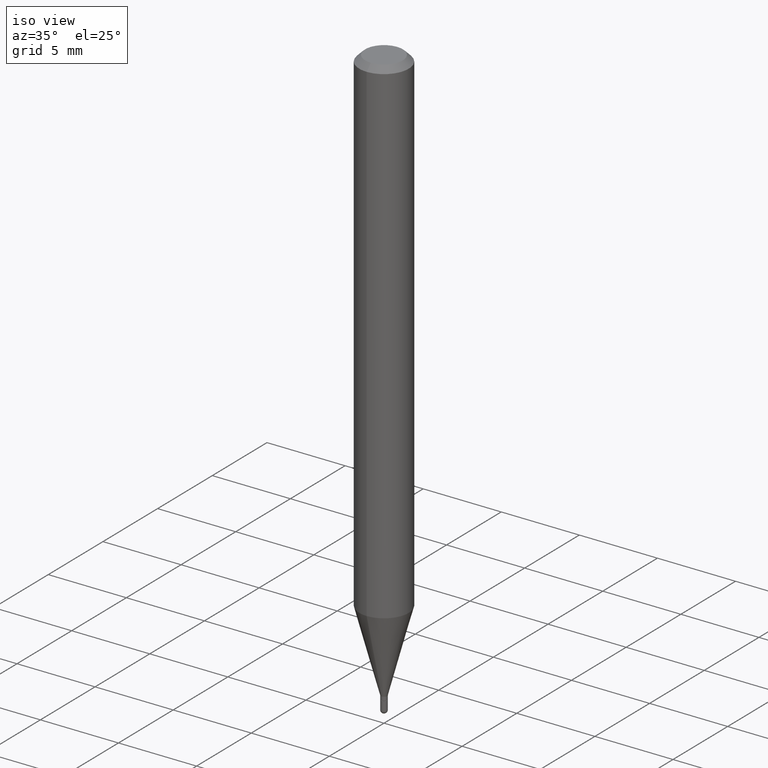
[diagram: clean part render]
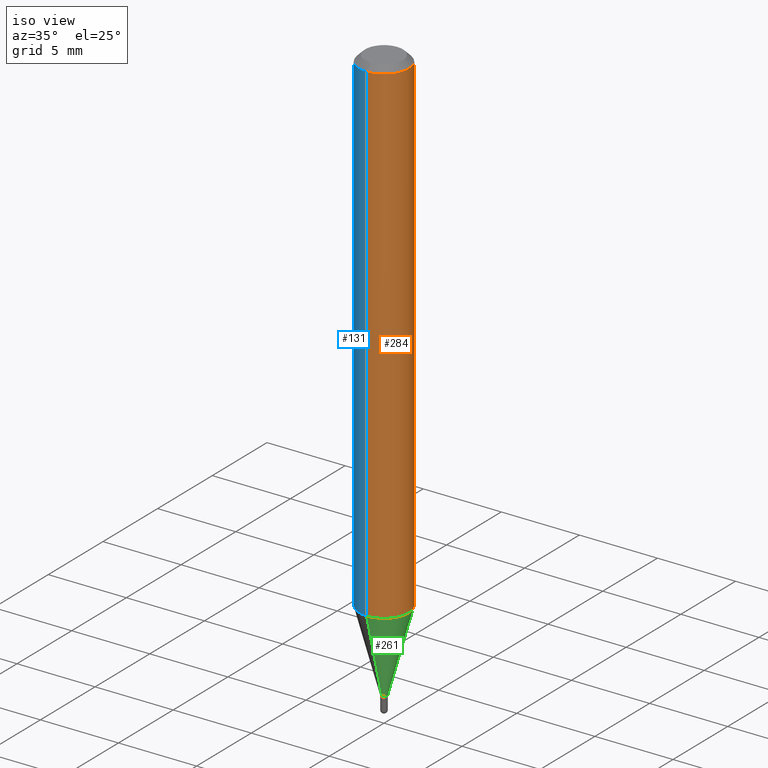
[diagram: same view with three faces highlighted in distinct colors, each labeled with its STEP entity id]
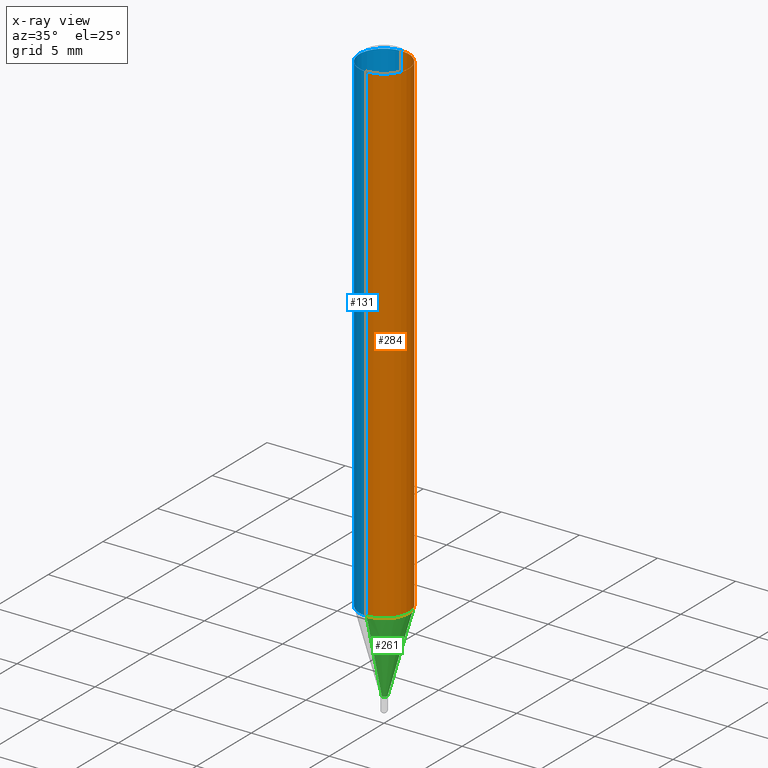
[diagram: x-ray of the same camera — body ghosted, the three highlighted faces saturated]
A machine part, iso view with three faces highlighted in distinct colors.
The next image is the same camera in x-ray (body ghosted, the three faces saturated) — at least one of them is partly hidden behind the body in this view.
Their STEP definitions:

[orange] entity #284 — the highlighted cylindrical surface (edge-blend (fillet) strip) has radius 1.5875 mm, axis along (-0, 0, 1).
#1 = LINE ( 'NONE', #476, #442 ) ;
#6 = CARTESIAN_POINT ( 'NONE',  ( 3.658707936704612906E-31, -5.250819779027040466E-17, -0.01500000000000043313 ) ) ;
#25 = EDGE_CURVE ( 'NONE', #385, #84, #308, .T. ) ;
#62 = EDGE_CURVE ( 'NONE', #385, #319, #1, .T. ) ;
#79 = CARTESIAN_POINT ( 'NONE',  ( -4.364351673553612983E-16, -0.06250000000000442701, -1.254856820825980934 ) ) ;
#84 = VERTEX_POINT ( 'NONE', #505 ) ;
#108 = DIRECTION ( 'NONE',  ( -2.439138624469671930E-29, 3.500546519351259222E-15, 1.000000000000000000 ) ) ;
#116 = AXIS2_PLACEMENT_3D ( 'NONE', #412, #343, #145 ) ;
#145 = DIRECTION ( 'NONE',  ( -6.982962677686265922E-15, -1.000000000000000000, 4.370956789862819572E-15 ) ) ;
#151 = ORIENTED_EDGE ( 'NONE', *, *, #215, .F. ) ;
#174 = ORIENTED_EDGE ( 'NONE', *, *, #25, .T. ) ;
#177 = VECTOR ( 'NONE', #327, 39.37007874015748143 ) ;
#182 = EDGE_CURVE ( 'NONE', #84, #326, #437, .T. ) ;
#188 = AXIS2_PLACEMENT_3D ( 'NONE', #6, #254, #492 ) ;
#215 = EDGE_CURVE ( 'NONE', #319, #326, #490, .T. ) ;
#235 = DIRECTION ( 'NONE',  ( -2.439138624469671930E-29, 3.500546519351259222E-15, 1.000000000000000000 ) ) ;
#254 = DIRECTION ( 'NONE',  ( -2.439138624469671930E-29, 3.500546519351259222E-15, 1.000000000000000000 ) ) ;
#269 = CARTESIAN_POINT ( 'NONE',  ( 4.440892098500935790E-16, 0.06249999999999996531, -0.01500000000000065344 ) ) ;
#284 = ADVANCED_FACE ( 'NONE', ( #415 ), #302, .T. ) ;
#293 = EDGE_LOOP ( 'NONE', ( #174, #497, #151, #394 ) ) ;
#297 = CARTESIAN_POINT ( 'NONE',  ( 4.440892098500627148E-16, 0.06250000000000001388, -2.187841574594537753E-16 ) ) ;
#302 = CYLINDRICAL_SURFACE ( 'NONE', #309, 0.06250000000000001388 ) ;
#308 = CIRCLE ( 'NONE', #116, 0.06250000000000002776 ) ;
#309 = AXIS2_PLACEMENT_3D ( 'NONE', #410, #108, #452 ) ;
#319 = VERTEX_POINT ( 'NONE', #325 ) ;
#325 = CARTESIAN_POINT ( 'NONE',  ( -4.364351673553913736E-16, -0.06250000000000006939, -0.01500000000000021282 ) ) ;
#326 = VERTEX_POINT ( 'NONE', #269 ) ;
#327 = DIRECTION ( 'NONE',  ( -2.439138624469671930E-29, 3.500546519351259222E-15, 1.000000000000000000 ) ) ;
#343 = DIRECTION ( 'NONE',  ( -2.439138624469671930E-29, 3.500546519351259222E-15, 1.000000000000000000 ) ) ;
#385 = VERTEX_POINT ( 'NONE', #79 ) ;
#394 = ORIENTED_EDGE ( 'NONE', *, *, #62, .F. ) ;
#410 = CARTESIAN_POINT ( 'NONE',  ( 0.000000000000000000, 0.000000000000000000, 0.000000000000000000 ) ) ;
#412 = CARTESIAN_POINT ( 'NONE',  ( 3.060769739855869221E-29, -4.392684676426576223E-15, -1.254856820825981156 ) ) ;
#415 = FACE_OUTER_BOUND ( 'NONE', #293, .T. ) ;
#437 = LINE ( 'NONE', #297, #177 ) ;
#442 = VECTOR ( 'NONE', #235, 39.37007874015748143 ) ;
#452 = DIRECTION ( 'NONE',  ( -6.982962677686265922E-15, -1.000000000000000000, 3.500546519351259616E-15 ) ) ;
#476 = CARTESIAN_POINT ( 'NONE',  ( -4.364351673553917187E-16, -0.06250000000000001388, 2.187841574594537753E-16 ) ) ;
#490 = CIRCLE ( 'NONE', #188, 0.06250000000000001388 ) ;
#492 = DIRECTION ( 'NONE',  ( -6.982962677686265922E-15, -1.000000000000000000, 3.517254291842738179E-15 ) ) ;
#497 = ORIENTED_EDGE ( 'NONE', *, *, #182, .T. ) ;
#505 = CARTESIAN_POINT ( 'NONE',  ( 4.440892098500931845E-16, 0.06249999999999562156, -1.254856820825981378 ) ) ;

[blue] entity #131 — the highlighted cylindrical surface (edge-blend (fillet) strip) has radius 1.5875 mm, axis along (-0, 0, 1).
#1 = LINE ( 'NONE', #476, #442 ) ;
#13 = EDGE_CURVE ( 'NONE', #84, #385, #509, .T. ) ;
#29 = DIRECTION ( 'NONE',  ( -2.439138624469671930E-29, 3.500546519351259222E-15, 1.000000000000000000 ) ) ;
#40 = CYLINDRICAL_SURFACE ( 'NONE', #197, 0.06250000000000001388 ) ;
#62 = EDGE_CURVE ( 'NONE', #385, #319, #1, .T. ) ;
#72 = DIRECTION ( 'NONE',  ( -6.982962677686265922E-15, -1.000000000000000000, 3.517254291842738179E-15 ) ) ;
#75 = FACE_OUTER_BOUND ( 'NONE', #248, .T. ) ;
#79 = CARTESIAN_POINT ( 'NONE',  ( -4.364351673553612983E-16, -0.06250000000000442701, -1.254856820825980934 ) ) ;
#82 = CARTESIAN_POINT ( 'NONE',  ( 0.000000000000000000, 0.000000000000000000, 0.000000000000000000 ) ) ;
#84 = VERTEX_POINT ( 'NONE', #505 ) ;
#95 = AXIS2_PLACEMENT_3D ( 'NONE', #299, #29, #259 ) ;
#131 = ADVANCED_FACE ( 'NONE', ( #75 ), #40, .T. ) ;
#136 = ORIENTED_EDGE ( 'NONE', *, *, #355, .F. ) ;
#177 = VECTOR ( 'NONE', #327, 39.37007874015748143 ) ;
#182 = EDGE_CURVE ( 'NONE', #84, #326, #437, .T. ) ;
#197 = AXIS2_PLACEMENT_3D ( 'NONE', #82, #240, #357 ) ;
#198 = ORIENTED_EDGE ( 'NONE', *, *, #13, .T. ) ;
#235 = DIRECTION ( 'NONE',  ( -2.439138624469671930E-29, 3.500546519351259222E-15, 1.000000000000000000 ) ) ;
#240 = DIRECTION ( 'NONE',  ( -2.439138624469671930E-29, 3.500546519351259222E-15, 1.000000000000000000 ) ) ;
#242 = ORIENTED_EDGE ( 'NONE', *, *, #62, .T. ) ;
#248 = EDGE_LOOP ( 'NONE', ( #373, #198, #242, #136 ) ) ;
#258 = AXIS2_PLACEMENT_3D ( 'NONE', #512, #316, #72 ) ;
#259 = DIRECTION ( 'NONE',  ( -6.982962677686265922E-15, -1.000000000000000000, 4.370956789862819572E-15 ) ) ;
#269 = CARTESIAN_POINT ( 'NONE',  ( 4.440892098500935790E-16, 0.06249999999999996531, -0.01500000000000065344 ) ) ;
#297 = CARTESIAN_POINT ( 'NONE',  ( 4.440892098500627148E-16, 0.06250000000000001388, -2.187841574594537753E-16 ) ) ;
#299 = CARTESIAN_POINT ( 'NONE',  ( 3.060769739855869221E-29, -4.392684676426576223E-15, -1.254856820825981156 ) ) ;
#316 = DIRECTION ( 'NONE',  ( -2.439138624469671930E-29, 3.500546519351259222E-15, 1.000000000000000000 ) ) ;
#319 = VERTEX_POINT ( 'NONE', #325 ) ;
#325 = CARTESIAN_POINT ( 'NONE',  ( -4.364351673553913736E-16, -0.06250000000000006939, -0.01500000000000021282 ) ) ;
#326 = VERTEX_POINT ( 'NONE', #269 ) ;
#327 = DIRECTION ( 'NONE',  ( -2.439138624469671930E-29, 3.500546519351259222E-15, 1.000000000000000000 ) ) ;
#355 = EDGE_CURVE ( 'NONE', #326, #319, #451, .T. ) ;
#357 = DIRECTION ( 'NONE',  ( -6.982962677686265922E-15, -1.000000000000000000, 3.500546519351259616E-15 ) ) ;
#373 = ORIENTED_EDGE ( 'NONE', *, *, #182, .F. ) ;
#385 = VERTEX_POINT ( 'NONE', #79 ) ;
#437 = LINE ( 'NONE', #297, #177 ) ;
#442 = VECTOR ( 'NONE', #235, 39.37007874015748143 ) ;
#451 = CIRCLE ( 'NONE', #258, 0.06250000000000001388 ) ;
#476 = CARTESIAN_POINT ( 'NONE',  ( -4.364351673553917187E-16, -0.06250000000000001388, 2.187841574594537753E-16 ) ) ;
#505 = CARTESIAN_POINT ( 'NONE',  ( 4.440892098500931845E-16, 0.06249999999999562156, -1.254856820825981378 ) ) ;
#509 = CIRCLE ( 'NONE', #95, 0.06250000000000002776 ) ;
#512 = CARTESIAN_POINT ( 'NONE',  ( 3.658707936704612906E-31, -5.250819779027040466E-17, -0.01500000000000043313 ) ) ;

[green] entity #261 — the highlighted conical surface has half-angle 15 deg.
#8 = AXIS2_PLACEMENT_3D ( 'NONE', #173, #135, #216 ) ;
#25 = EDGE_CURVE ( 'NONE', #385, #84, #308, .T. ) ;
#32 = CARTESIAN_POINT ( 'NONE',  ( 5.542233338931899045E-17, 0.007799999999994273320, -1.459000000000000519 ) ) ;
#79 = CARTESIAN_POINT ( 'NONE',  ( -4.364351673553612983E-16, -0.06250000000000442701, -1.254856820825980934 ) ) ;
#84 = VERTEX_POINT ( 'NONE', #505 ) ;
#86 = CIRCLE ( 'NONE', #129, 0.007799999999999380346 ) ;
#116 = AXIS2_PLACEMENT_3D ( 'NONE', #412, #343, #145 ) ;
#126 = CARTESIAN_POINT ( 'NONE',  ( -5.446710888591296590E-17, -0.007800000000004487372, -1.459000000000000519 ) ) ;
#129 = AXIS2_PLACEMENT_3D ( 'NONE', #180, #224, #339 ) ;
#135 = DIRECTION ( 'NONE',  ( -2.439138624469671930E-29, 3.500546519351259222E-15, 1.000000000000000000 ) ) ;
#145 = DIRECTION ( 'NONE',  ( -6.982962677686265922E-15, -1.000000000000000000, 4.370956789862819572E-15 ) ) ;
#149 = VECTOR ( 'NONE', #495, 39.37007874015748143 ) ;
#170 = CONICAL_SURFACE ( 'NONE', #8, 0.007799999999999380346, 0.2617993877991502960 ) ;
#173 = CARTESIAN_POINT ( 'NONE',  ( 3.558703253101252922E-29, -5.107297371733488374E-15, -1.459000000000000519 ) ) ;
#180 = CARTESIAN_POINT ( 'NONE',  ( 3.558703253101252922E-29, -5.107297371733488374E-15, -1.459000000000000519 ) ) ;
#204 = CARTESIAN_POINT ( 'NONE',  ( -5.446710888591296590E-17, -0.007800000000004487372, -1.459000000000000519 ) ) ;
#213 = EDGE_LOOP ( 'NONE', ( #388, #440, #277, #356 ) ) ;
#216 = DIRECTION ( 'NONE',  ( -6.982962677686266711E-15, -1.000000000000000000, 0.000000000000000000 ) ) ;
#224 = DIRECTION ( 'NONE',  ( -2.439138624469671930E-29, 3.500546519351259222E-15, 1.000000000000000000 ) ) ;
#227 = VERTEX_POINT ( 'NONE', #290 ) ;
#237 = LINE ( 'NONE', #126, #468 ) ;
#261 = ADVANCED_FACE ( 'NONE', ( #368 ), #170, .T. ) ;
#277 = ORIENTED_EDGE ( 'NONE', *, *, #25, .F. ) ;
#283 = DIRECTION ( 'NONE',  ( -1.807323732225330534E-15, -0.2588190451025182415, 0.9659258262890689783 ) ) ;
#290 = CARTESIAN_POINT ( 'NONE',  ( 2.497557716197062816E-16, 0.007799999999994272452, -1.459000000000000519 ) ) ;
#292 = EDGE_CURVE ( 'NONE', #364, #227, #86, .T. ) ;
#300 = EDGE_CURVE ( 'NONE', #227, #84, #374, .T. ) ;
#308 = CIRCLE ( 'NONE', #116, 0.06250000000000002776 ) ;
#339 = DIRECTION ( 'NONE',  ( -6.982962677686266711E-15, -1.000000000000000000, 0.000000000000000000 ) ) ;
#343 = DIRECTION ( 'NONE',  ( -2.439138624469671930E-29, 3.500546519351259222E-15, 1.000000000000000000 ) ) ;
#356 = ORIENTED_EDGE ( 'NONE', *, *, #395, .F. ) ;
#364 = VERTEX_POINT ( 'NONE', #204 ) ;
#368 = FACE_OUTER_BOUND ( 'NONE', #213, .T. ) ;
#374 = LINE ( 'NONE', #32, #149 ) ;
#385 = VERTEX_POINT ( 'NONE', #79 ) ;
#388 = ORIENTED_EDGE ( 'NONE', *, *, #292, .T. ) ;
#395 = EDGE_CURVE ( 'NONE', #364, #385, #237, .T. ) ;
#412 = CARTESIAN_POINT ( 'NONE',  ( 3.060769739855869221E-29, -4.392684676426576223E-15, -1.254856820825981156 ) ) ;
#440 = ORIENTED_EDGE ( 'NONE', *, *, #300, .T. ) ;
#468 = VECTOR ( 'NONE', #283, 39.37007874015748143 ) ;
#495 = DIRECTION ( 'NONE',  ( 1.839019923739600710E-15, 0.2588190451025250138, 0.9659258262890670910 ) ) ;
#505 = CARTESIAN_POINT ( 'NONE',  ( 4.440892098500931845E-16, 0.06249999999999562156, -1.254856820825981378 ) ) ;